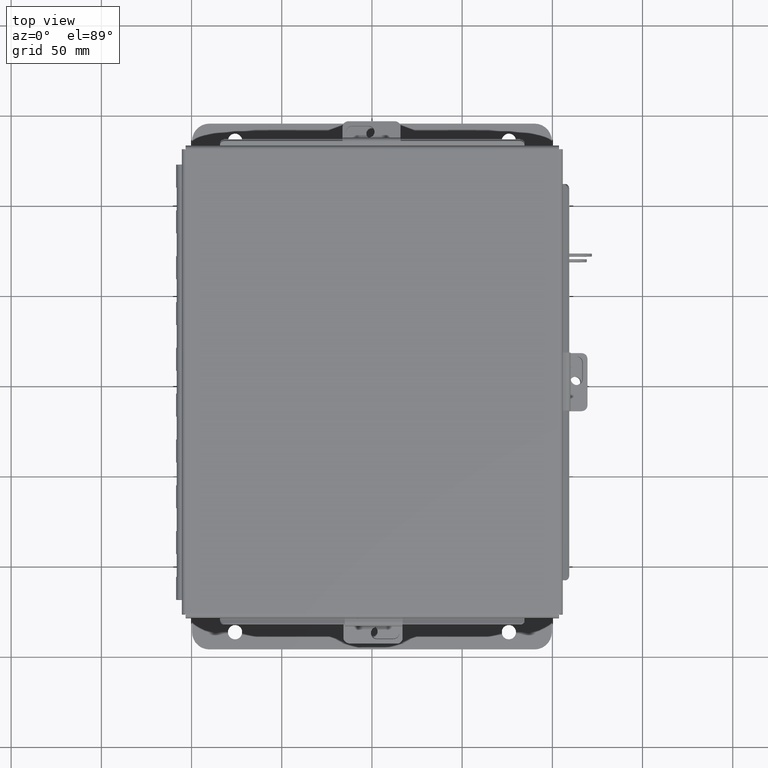
[diagram: clean part render]
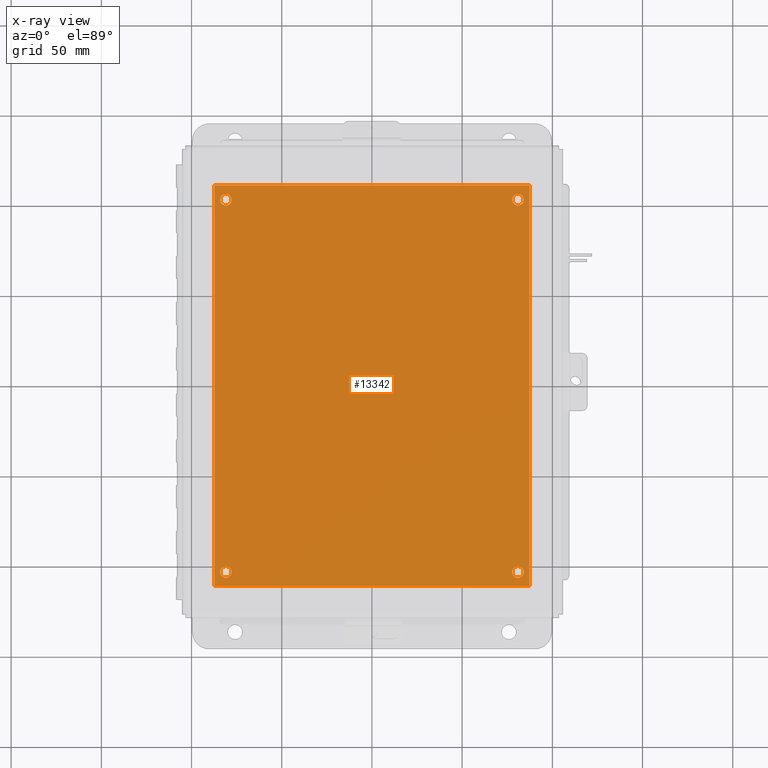
[diagram: x-ray — body ghosted, one internal face saturated and labeled with its STEP entity id]
A machine part, top view, then the same camera in x-ray: the body is ghosted and one INTERNAL B-rep face — a face not visible from any outside direction — is saturated and labeled: STEP entity #13342.
In plain terms, the highlighted planar face has unit normal (0, 0, -1).
Its self-contained STEP definition (entity closure, byte-faithful):
#114 = ORIENTED_EDGE ( 'NONE', *, *, #1944, .T. ) ;
#173 = VERTEX_POINT ( 'NONE', #5984 ) ;
#309 = VERTEX_POINT ( 'NONE', #12860 ) ;
#433 = DIRECTION ( 'NONE',  ( 0.0000000000000000000, 0.0000000000000000000, -1.000000000000000000 ) ) ;
#506 = DIRECTION ( 'NONE',  ( -1.000000000000000000, 0.0000000000000000000, 0.0000000000000000000 ) ) ;
#726 = CARTESIAN_POINT ( 'NONE',  ( 0.2500000000000003300, 8.437999999999998800, -0.07470000000000003000 ) ) ;
#928 = EDGE_CURVE ( 'NONE', #2196, #6807, #12344, .T. ) ;
#1116 = FACE_BOUND ( 'NONE', #4712, .T. ) ;
#1242 = CARTESIAN_POINT ( 'NONE',  ( 0.0000000000000000000, 8.750000000000000000, -0.07470000000000003000 ) ) ;
#1331 = ORIENTED_EDGE ( 'NONE', *, *, #2888, .F. ) ;
#1432 = EDGE_CURVE ( 'NONE', #173, #7576, #2595, .T. ) ;
#1709 = CARTESIAN_POINT ( 'NONE',  ( 6.875000000000000000, 0.0000000000000000000, -0.07470000000000003000 ) ) ;
#1818 = ORIENTED_EDGE ( 'NONE', *, *, #6940, .T. ) ;
#1944 = EDGE_CURVE ( 'NONE', #6807, #2196, #8555, .T. ) ;
#2028 = CARTESIAN_POINT ( 'NONE',  ( 0.1250000000000003300, 8.437999999999998800, -0.07470000000000003000 ) ) ;
#2196 = VERTEX_POINT ( 'NONE', #3980 ) ;
#2346 = CARTESIAN_POINT ( 'NONE',  ( 6.750000000000003600, 0.3120000000000020500, -0.07470000000000003000 ) ) ;
#2595 = CIRCLE ( 'NONE', #5341, 0.1250000000000004400 ) ;
#2888 = EDGE_CURVE ( 'NONE', #309, #4650, #16483, .T. ) ;
#2923 = LINE ( 'NONE', #13675, #16463 ) ;
#3061 = CARTESIAN_POINT ( 'NONE',  ( 0.0000000000000000000, 0.0000000000000000000, -0.07470000000000003000 ) ) ;
#3312 = CARTESIAN_POINT ( 'NONE',  ( 6.500000000000000900, 8.438000000000000600, -0.07470000000000003000 ) ) ;
#3394 = ORIENTED_EDGE ( 'NONE', *, *, #928, .T. ) ;
#3466 = CARTESIAN_POINT ( 'NONE',  ( 6.875000000000000000, 8.750000000000000000, -0.07470000000000003000 ) ) ;
#3706 = VERTEX_POINT ( 'NONE', #1709 ) ;
#3961 = VERTEX_POINT ( 'NONE', #8773 ) ;
#3980 = CARTESIAN_POINT ( 'NONE',  ( 0.3750000000000003900, 8.437999999999998800, -0.07470000000000003000 ) ) ;
#4161 = EDGE_LOOP ( 'NONE', ( #7543, #1818 ) ) ;
#4220 = PLANE ( 'NONE',  #4720 ) ;
#4307 = DIRECTION ( 'NONE',  ( -1.000000000000000000, -0.0000000000000000000, -0.0000000000000000000 ) ) ;
#4413 = DIRECTION ( 'NONE',  ( -1.000000000000000000, 0.0000000000000000000, 0.0000000000000000000 ) ) ;
#4513 = DIRECTION ( 'NONE',  ( -0.0000000000000000000, -0.0000000000000000000, 1.000000000000000000 ) ) ;
#4650 = VERTEX_POINT ( 'NONE', #14466 ) ;
#4712 = EDGE_LOOP ( 'NONE', ( #14105, #13655 ) ) ;
#4720 = AXIS2_PLACEMENT_3D ( 'NONE', #14385, #433, #9362 ) ;
#4799 = EDGE_CURVE ( 'NONE', #14643, #3961, #5272, .T. ) ;
#4813 = EDGE_CURVE ( 'NONE', #9306, #309, #15009, .T. ) ;
#5212 = CARTESIAN_POINT ( 'NONE',  ( 0.2500000000000003300, 8.437999999999998800, -0.07470000000000003000 ) ) ;
#5272 = CIRCLE ( 'NONE', #5565, 0.1250000000000004400 ) ;
#5295 = CARTESIAN_POINT ( 'NONE',  ( 0.2500000000000020000, 0.3120000000000015000, -0.07470000000000003000 ) ) ;
#5341 = AXIS2_PLACEMENT_3D ( 'NONE', #7449, #16343, #6169 ) ;
#5369 = FACE_BOUND ( 'NONE', #9889, .T. ) ;
#5565 = AXIS2_PLACEMENT_3D ( 'NONE', #11003, #12528, #6051 ) ;
#5912 = ORIENTED_EDGE ( 'NONE', *, *, #4813, .F. ) ;
#5984 = CARTESIAN_POINT ( 'NONE',  ( 6.500000000000002700, 0.3120000000000020500, -0.07470000000000003000 ) ) ;
#6044 = DIRECTION ( 'NONE',  ( -1.000000000000000000, 0.0000000000000000000, 0.0000000000000000000 ) ) ;
#6051 = DIRECTION ( 'NONE',  ( -1.000000000000000000, 0.0000000000000000000, 0.0000000000000000000 ) ) ;
#6084 = DIRECTION ( 'NONE',  ( 0.0000000000000000000, 1.000000000000000000, 0.0000000000000000000 ) ) ;
#6169 = DIRECTION ( 'NONE',  ( -1.000000000000000000, 0.0000000000000000000, 0.0000000000000000000 ) ) ;
#6239 = LINE ( 'NONE', #3061, #15969 ) ;
#6565 = CIRCLE ( 'NONE', #14371, 0.1250000000000004400 ) ;
#6580 = EDGE_CURVE ( 'NONE', #7576, #173, #8036, .T. ) ;
#6754 = DIRECTION ( 'NONE',  ( 1.000000000000000000, 0.0000000000000000000, 0.0000000000000000000 ) ) ;
#6807 = VERTEX_POINT ( 'NONE', #2028 ) ;
#6835 = DIRECTION ( 'NONE',  ( -1.000000000000000000, 0.0000000000000000000, 0.0000000000000000000 ) ) ;
#6940 = EDGE_CURVE ( 'NONE', #11604, #13433, #7035, .T. ) ;
#7013 = CARTESIAN_POINT ( 'NONE',  ( 6.625000000000001800, 8.438000000000000600, -0.07470000000000003000 ) ) ;
#7027 = EDGE_CURVE ( 'NONE', #4650, #3706, #6239, .T. ) ;
#7035 = CIRCLE ( 'NONE', #11829, 0.1250000000000000600 ) ;
#7252 = EDGE_CURVE ( 'NONE', #13433, #11604, #15153, .T. ) ;
#7449 = CARTESIAN_POINT ( 'NONE',  ( 6.625000000000002700, 0.3120000000000020500, -0.07470000000000003000 ) ) ;
#7478 = DIRECTION ( 'NONE',  ( -1.000000000000000000, 0.0000000000000000000, 0.0000000000000000000 ) ) ;
#7543 = ORIENTED_EDGE ( 'NONE', *, *, #7252, .T. ) ;
#7576 = VERTEX_POINT ( 'NONE', #2346 ) ;
#7869 = AXIS2_PLACEMENT_3D ( 'NONE', #726, #11568, #6044 ) ;
#7893 = FACE_BOUND ( 'NONE', #9093, .T. ) ;
#8036 = CIRCLE ( 'NONE', #15901, 0.1250000000000004400 ) ;
#8149 = DIRECTION ( 'NONE',  ( -0.0000000000000000000, -0.0000000000000000000, 1.000000000000000000 ) ) ;
#8153 = ORIENTED_EDGE ( 'NONE', *, *, #7027, .F. ) ;
#8261 = VECTOR ( 'NONE', #4307, 39.37007874015748100 ) ;
#8267 = DIRECTION ( 'NONE',  ( -1.000000000000000000, 0.0000000000000000000, 0.0000000000000000000 ) ) ;
#8555 = CIRCLE ( 'NONE', #7869, 0.1250000000000000000 ) ;
#8587 = ORIENTED_EDGE ( 'NONE', *, *, #1432, .T. ) ;
#8773 = CARTESIAN_POINT ( 'NONE',  ( 6.750000000000001800, 8.438000000000000600, -0.07470000000000003000 ) ) ;
#9093 = EDGE_LOOP ( 'NONE', ( #9181, #8587 ) ) ;
#9181 = ORIENTED_EDGE ( 'NONE', *, *, #6580, .T. ) ;
#9306 = VERTEX_POINT ( 'NONE', #3466 ) ;
#9362 = DIRECTION ( 'NONE',  ( -1.000000000000000000, 0.0000000000000000000, -0.0000000000000000000 ) ) ;
#9889 = EDGE_LOOP ( 'NONE', ( #3394, #114 ) ) ;
#9975 = EDGE_LOOP ( 'NONE', ( #1331, #5912, #13864, #8153 ) ) ;
#10872 = VECTOR ( 'NONE', #14411, 39.37007874015748100 ) ;
#11003 = CARTESIAN_POINT ( 'NONE',  ( 6.625000000000001800, 8.438000000000000600, -0.07470000000000003000 ) ) ;
#11015 = EDGE_CURVE ( 'NONE', #3961, #14643, #6565, .T. ) ;
#11525 = AXIS2_PLACEMENT_3D ( 'NONE', #15759, #8149, #506 ) ;
#11568 = DIRECTION ( 'NONE',  ( -0.0000000000000000000, -0.0000000000000000000, 1.000000000000000000 ) ) ;
#11604 = VERTEX_POINT ( 'NONE', #14231 ) ;
#11829 = AXIS2_PLACEMENT_3D ( 'NONE', #5295, #4513, #4413 ) ;
#12209 = CARTESIAN_POINT ( 'NONE',  ( 0.3750000000000020000, 0.3120000000000015000, -0.07470000000000003000 ) ) ;
#12344 = CIRCLE ( 'NONE', #14480, 0.1250000000000000000 ) ;
#12528 = DIRECTION ( 'NONE',  ( -0.0000000000000000000, -0.0000000000000000000, 1.000000000000000000 ) ) ;
#12742 = CARTESIAN_POINT ( 'NONE',  ( 0.0000000000000000000, 0.0000000000000000000, -0.07470000000000003000 ) ) ;
#12860 = CARTESIAN_POINT ( 'NONE',  ( 0.0000000000000000000, 8.750000000000000000, -0.07470000000000003000 ) ) ;
#12906 = FACE_OUTER_BOUND ( 'NONE', #9975, .T. ) ;
#12952 = EDGE_CURVE ( 'NONE', #3706, #9306, #2923, .T. ) ;
#13342 = ADVANCED_FACE ( 'NONE', ( #16313, #7893, #1116, #5369, #12906 ), #4220, .T. ) ;
#13433 = VERTEX_POINT ( 'NONE', #12209 ) ;
#13655 = ORIENTED_EDGE ( 'NONE', *, *, #4799, .T. ) ;
#13675 = CARTESIAN_POINT ( 'NONE',  ( 6.875000000000000000, 0.0000000000000000000, -0.07470000000000003000 ) ) ;
#13864 = ORIENTED_EDGE ( 'NONE', *, *, #12952, .F. ) ;
#14105 = ORIENTED_EDGE ( 'NONE', *, *, #11015, .T. ) ;
#14231 = CARTESIAN_POINT ( 'NONE',  ( 0.1250000000000019200, 0.3120000000000015000, -0.07470000000000003000 ) ) ;
#14371 = AXIS2_PLACEMENT_3D ( 'NONE', #7013, #15880, #8267 ) ;
#14385 = CARTESIAN_POINT ( 'NONE',  ( 0.0000000000000000000, 0.0000000000000000000, -0.07470000000000003000 ) ) ;
#14411 = DIRECTION ( 'NONE',  ( -0.0000000000000000000, -1.000000000000000000, -0.0000000000000000000 ) ) ;
#14466 = CARTESIAN_POINT ( 'NONE',  ( 0.0000000000000000000, 0.0000000000000000000, -0.07470000000000003000 ) ) ;
#14480 = AXIS2_PLACEMENT_3D ( 'NONE', #5212, #15152, #7478 ) ;
#14643 = VERTEX_POINT ( 'NONE', #3312 ) ;
#14744 = CARTESIAN_POINT ( 'NONE',  ( 6.625000000000002700, 0.3120000000000020500, -0.07470000000000003000 ) ) ;
#15009 = LINE ( 'NONE', #1242, #8261 ) ;
#15152 = DIRECTION ( 'NONE',  ( -0.0000000000000000000, -0.0000000000000000000, 1.000000000000000000 ) ) ;
#15153 = CIRCLE ( 'NONE', #11525, 0.1250000000000000600 ) ;
#15759 = CARTESIAN_POINT ( 'NONE',  ( 0.2500000000000020000, 0.3120000000000015000, -0.07470000000000003000 ) ) ;
#15867 = DIRECTION ( 'NONE',  ( -0.0000000000000000000, -0.0000000000000000000, 1.000000000000000000 ) ) ;
#15880 = DIRECTION ( 'NONE',  ( -0.0000000000000000000, -0.0000000000000000000, 1.000000000000000000 ) ) ;
#15901 = AXIS2_PLACEMENT_3D ( 'NONE', #14744, #15867, #6835 ) ;
#15969 = VECTOR ( 'NONE', #6754, 39.37007874015748100 ) ;
#16313 = FACE_BOUND ( 'NONE', #4161, .T. ) ;
#16343 = DIRECTION ( 'NONE',  ( -0.0000000000000000000, -0.0000000000000000000, 1.000000000000000000 ) ) ;
#16463 = VECTOR ( 'NONE', #6084, 39.37007874015748100 ) ;
#16483 = LINE ( 'NONE', #12742, #10872 ) ;